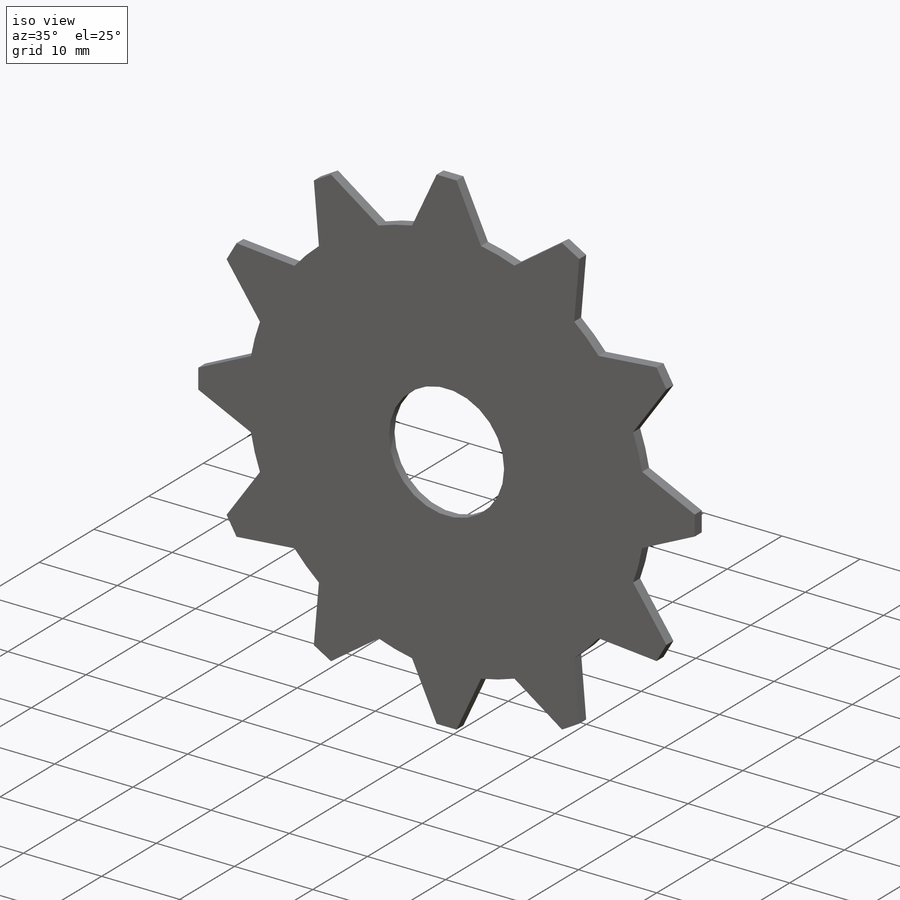
[diagram: iso view]
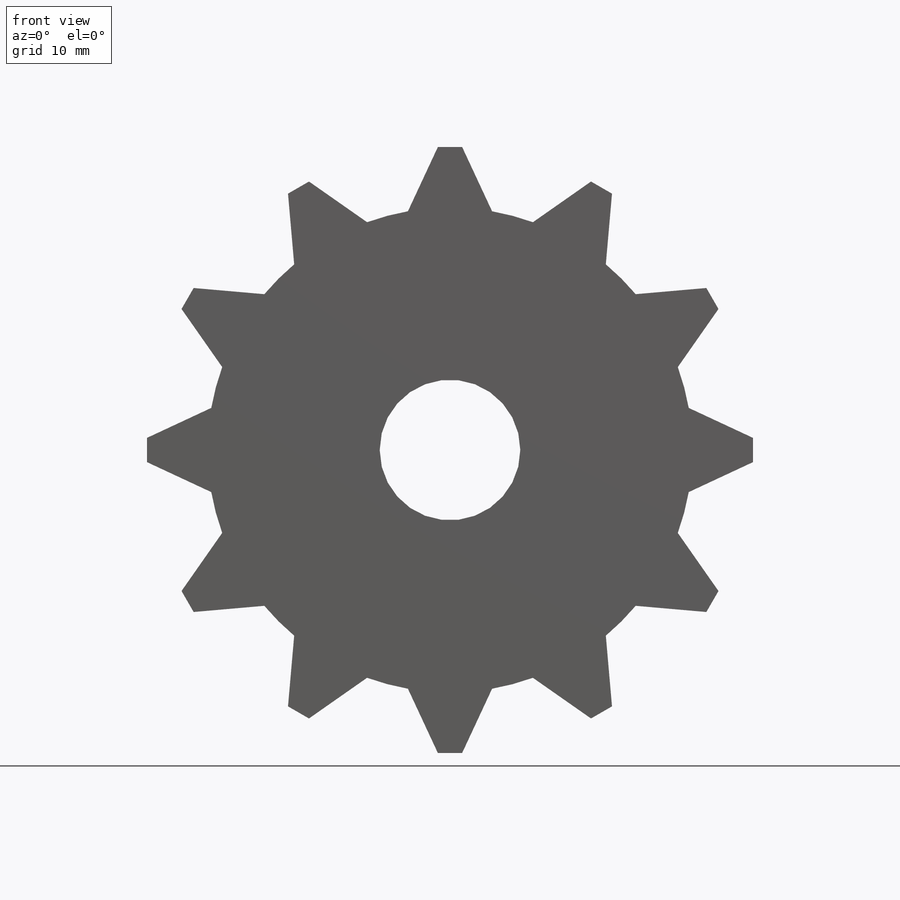
[diagram: front view]
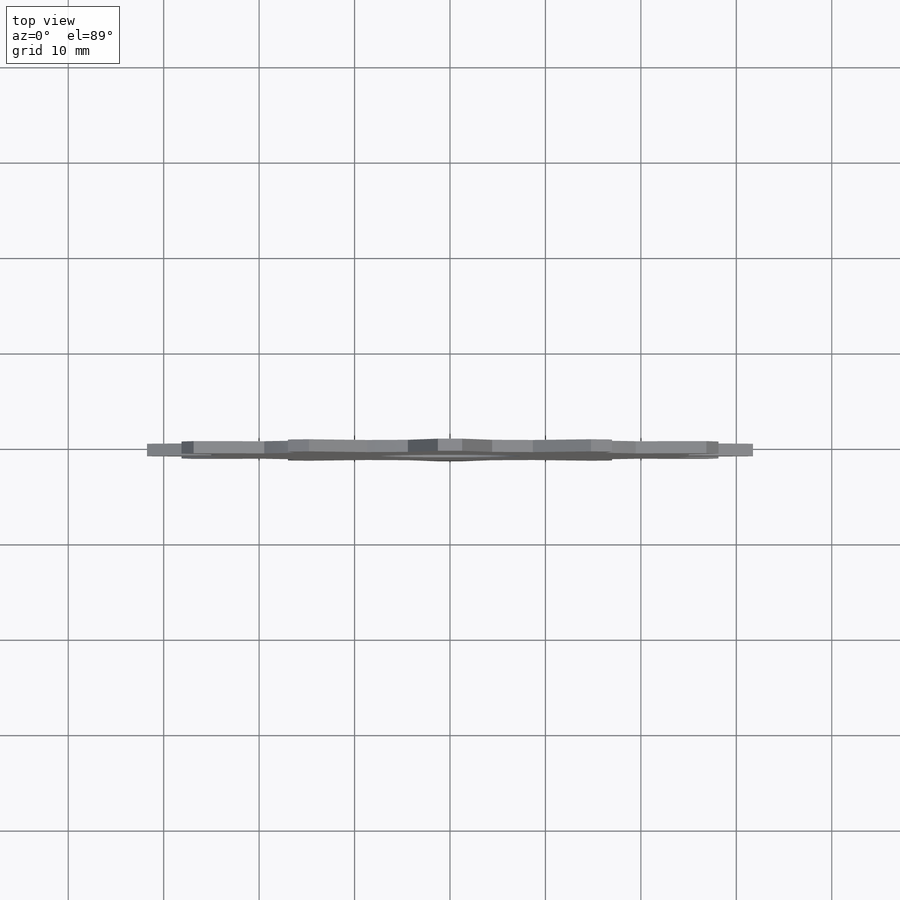
[diagram: top view]
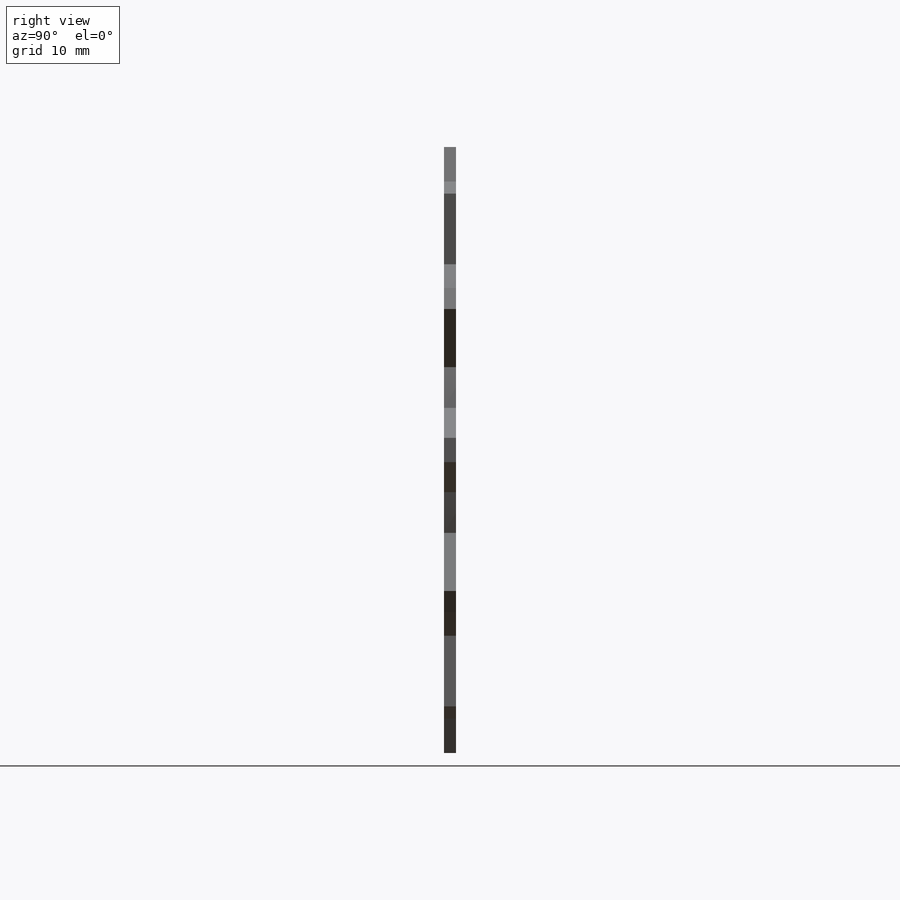
[diagram: right view]
SOLIDWORKS PART (.sldprt)
format: sldprt  version: not decoded by parser v0  size: 226,816 bytes
history: native  units: mm
features: sketch x4, extrude x2, cut_extrude x2, material x1, pattern_circular x1 (+12 scaffold rows collapsed)
feature tree (22):
  scaffold x12  (default folders/planes/origin — collapsed)
  material  "Material <not specified>"
  sketch  "Sketch1"  dims[D1=50.8mm]
  extrude  "Boss-Extrude1"  Depth=1.27mm
  sketch  "Sketch2"  dims[c1.D1=1.27mm c1.D2=~18.048512mm c2.D2=65.0deg c2.D3=6.35mm c2.D4=~6.723061mm c3.D4=65.0deg c3.D2=4.0]
  extrude  "Boss-Extrude2"  Depth=1.27mm
  sketch  "Sketch3"  dims[D1=14.732mm]
  cut_extrude  "Cut-Extrude1"  Depth=10mm
  pattern_circular  "CirPattern1"  Count=12 Angle=30deg
  sketch  "Sketch4"  dims[D1=~36.566322mm]
  cut_extrude  "Cut-Extrude2"  Depth=0.254mm
decode coverage: 9 of 9 modeling features carry decoded parameters
note: ~ marks probable driven/reference dimensions
note: suppression state not decoded; provenance and decode notes live in map.json
